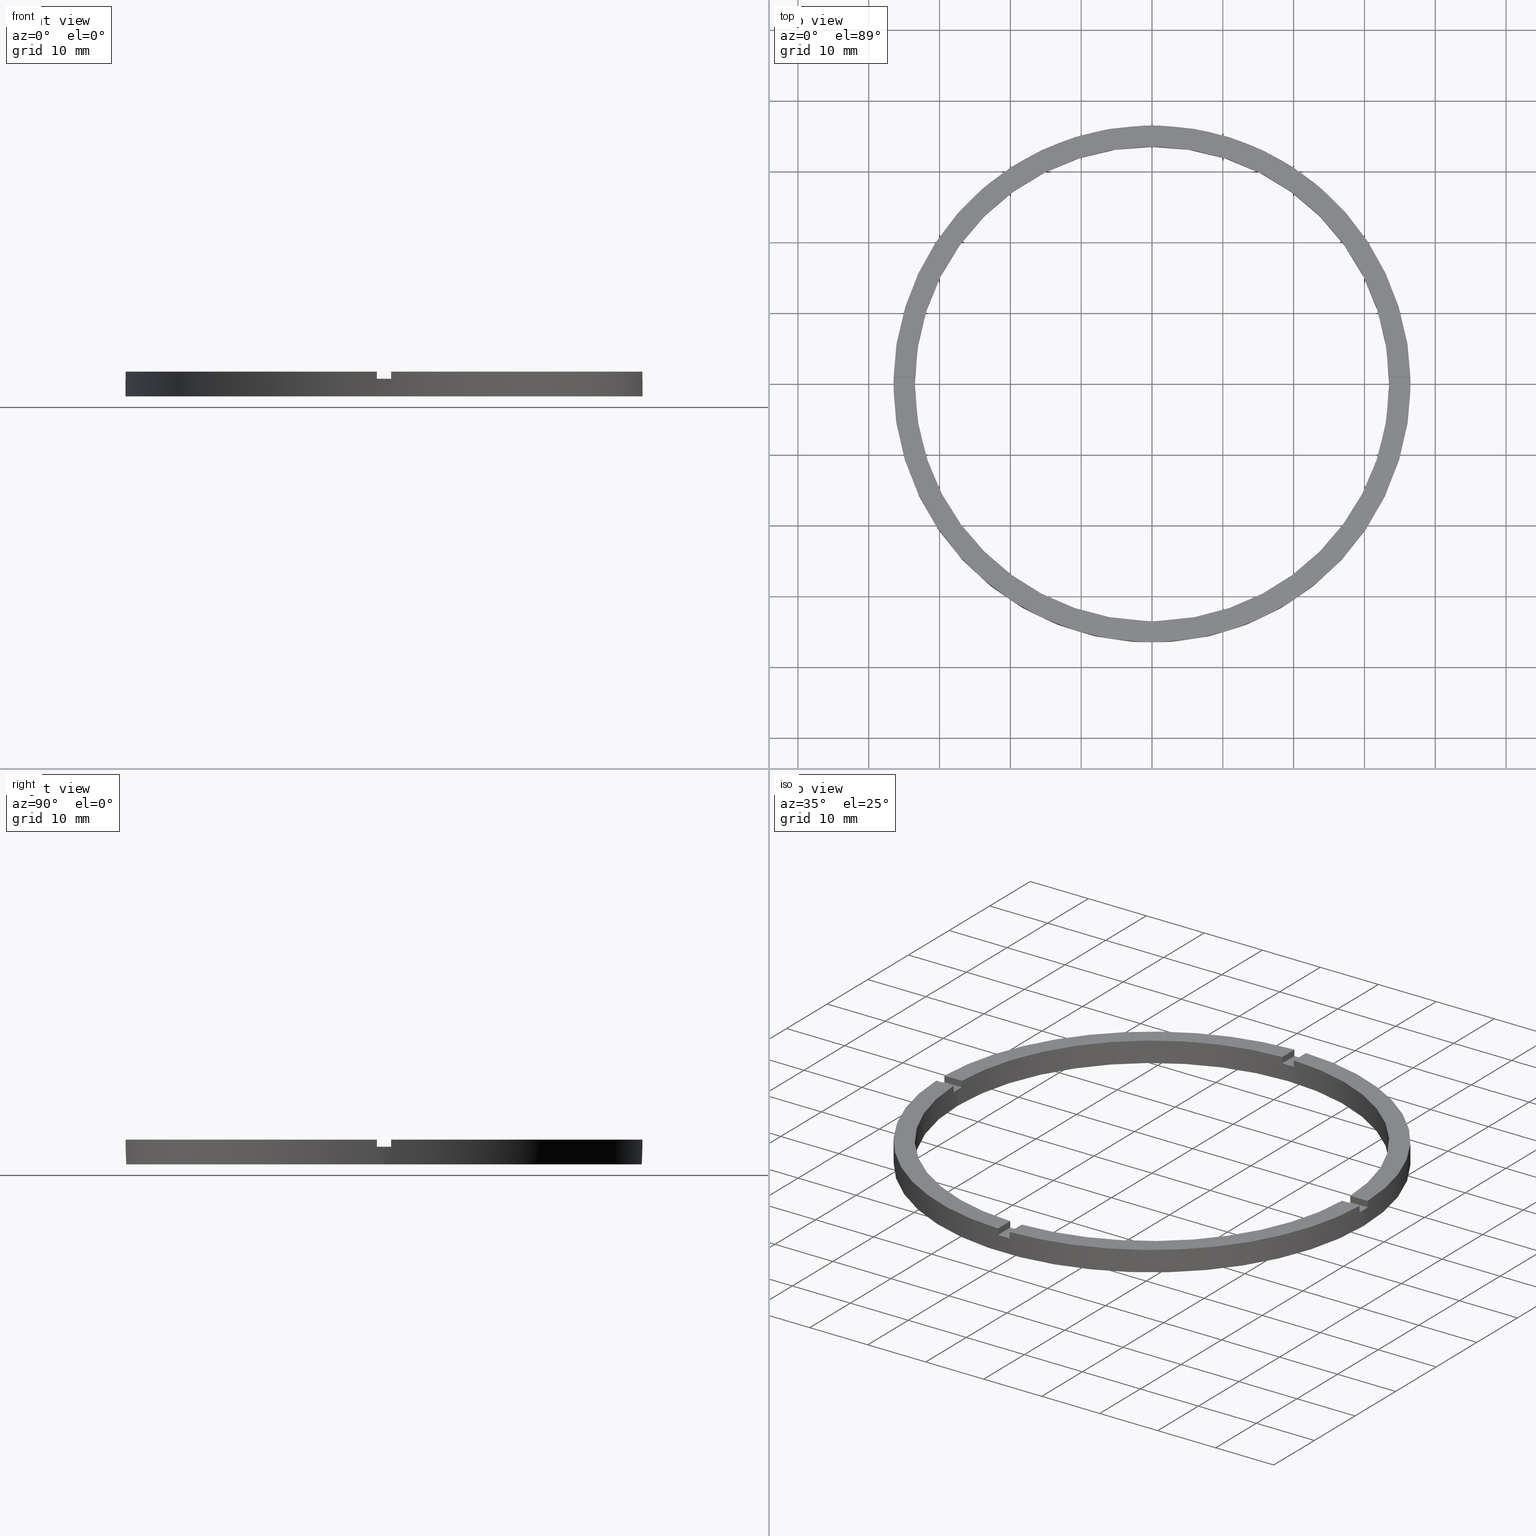
[diagram: canonical four-view strip — front | top / right | iso, engineering-drawing reading convention]
A machine part, canonical four-view strip (front | top / right | iso — engineering-drawing reading convention). The complete STEP part file that produces these views, byte-faithful:
ISO-10303-21;
HEADER;
FILE_DESCRIPTION (( 'STEP AP203' ),
    '1' );
FILE_NAME ('514150.step',
    '2024-12-26T02:42:22',
    ( 'MSI' ),
    ( '' ),
    'SwSTEP 2.0',
    'SolidWorks 2020',
    '' );
FILE_SCHEMA (( 'CONFIG_CONTROL_DESIGN' ));
ENDSEC;

DATA;
#1 = CARTESIAN_POINT ( 'NONE',  ( 0.000000000000000000, 0.000000000000000000, 2.500000000000000000 ) ) ;
#2 = CARTESIAN_POINT ( 'NONE',  ( -36.48629879831605649, 0.9999999999999726885, 3.500000000000000000 ) ) ;
#3 =( NAMED_UNIT ( * ) SI_UNIT ( $, .STERADIAN. ) SOLID_ANGLE_UNIT ( ) );
#4 = LINE ( 'NONE', #632, #555 ) ;
#5 = DIRECTION ( 'NONE',  ( 1.301042606982605074E-16, -1.000000000000000000, 0.000000000000000000 ) ) ;
#6 = CIRCLE ( 'NONE', #705, 36.50000000000000000 ) ;
#7 = LINE ( 'NONE', #352, #271 ) ;
#8 = DIRECTION ( 'NONE',  ( 1.000000000000000000, 0.000000000000000000, 0.000000000000000000 ) ) ;
#9 = PERSON_AND_ORGANIZATION_ROLE ( 'creator' ) ;
#10 = LINE ( 'NONE', #521, #272 ) ;
#11 = DIRECTION ( 'NONE',  ( 1.000000000000000000, 0.000000000000000000, 0.000000000000000000 ) ) ;
#12 = FACE_OUTER_BOUND ( 'NONE', #164, .T. ) ;
#13 = AXIS2_PLACEMENT_3D ( 'NONE', #753, #520, #267 ) ;
#14 = CARTESIAN_POINT ( 'NONE',  ( 36.50000000000000000, 4.469960816887838430E-15, 0.000000000000000000 ) ) ;
#15 = EDGE_CURVE ( 'NONE', #685, #411, #359, .T. ) ;
#16 = AXIS2_PLACEMENT_3D ( 'NONE', #36, #525, #600 ) ;
#17 = VECTOR ( 'NONE', #781, 1000.000000000000000 ) ;
#18 = FACE_OUTER_BOUND ( 'NONE', #74, .T. ) ;
#19 = DIRECTION ( 'NONE',  ( -0.000000000000000000, -0.000000000000000000, -1.000000000000000000 ) ) ;
#20 = CARTESIAN_POINT ( 'NONE',  ( 0.000000000000000000, 0.000000000000000000, 0.000000000000000000 ) ) ;
#21 = FACE_OUTER_BOUND ( 'NONE', #670, .T. ) ;
#22 = PLANE ( 'NONE',  #491 ) ;
#23 = LINE ( 'NONE', #69, #37 ) ;
#24 = PLANE ( 'NONE',  #691 ) ;
#25 = LINE ( 'NONE', #472, #546 ) ;
#26 = LINE ( 'NONE', #569, #287 ) ;
#27 = DIRECTION ( 'NONE',  ( 1.000000000000000000, 0.000000000000000000, 0.000000000000000000 ) ) ;
#28 = LINE ( 'NONE', #430, #42 ) ;
#29 = PRODUCT_RELATED_PRODUCT_CATEGORY ( 'detail', '', ( #716 ) ) ;
#30 = DIRECTION ( 'NONE',  ( 0.000000000000000000, 0.000000000000000000, 1.000000000000000000 ) ) ;
#31 = CIRCLE ( 'NONE', #397, 33.50000000000000000 ) ;
#32 = CIRCLE ( 'NONE', #573, 33.50000000000000000 ) ;
#33 = CARTESIAN_POINT ( 'NONE',  ( 0.9999999999999749090, 26.49999999999999645, 3.500000000000000000 ) ) ;
#34 = FACE_OUTER_BOUND ( 'NONE', #584, .T. ) ;
#35 = DIRECTION ( 'NONE',  ( 1.000000000000000000, 1.951563910473907735E-16, -0.000000000000000000 ) ) ;
#36 = CARTESIAN_POINT ( 'NONE',  ( 0.000000000000000000, 0.000000000000000000, 3.500000000000000000 ) ) ;
#37 = VECTOR ( 'NONE', #199, 1000.000000000000000 ) ;
#38 = FACE_OUTER_BOUND ( 'NONE', #399, .T. ) ;
#39 = CARTESIAN_POINT ( 'NONE',  ( -33.50000000000000000, 0.000000000000000000, 2.500000000000000000 ) ) ;
#40 = EDGE_CURVE ( 'NONE', #311, #677, #362, .T. ) ;
#41 = LINE ( 'NONE', #554, #284 ) ;
#42 = VECTOR ( 'NONE', #572, 1000.000000000000000 ) ;
#43 = AXIS2_PLACEMENT_3D ( 'NONE', #764, #467, #259 ) ;
#44 = EDGE_CURVE ( 'NONE', #498, #137, #640, .T. ) ;
#45 = DIRECTION ( 'NONE',  ( 1.000000000000000000, 0.000000000000000000, 0.000000000000000000 ) ) ;
#46 = VERTEX_POINT ( 'NONE', #39 ) ;
#47 = DIRECTION ( 'NONE',  ( 1.000000000000000000, 1.301042606982605074E-16, 0.000000000000000000 ) ) ;
#48 = FACE_OUTER_BOUND ( 'NONE', #466, .T. ) ;
#49 = ORIENTED_EDGE ( 'NONE', *, *, #433, .F. ) ;
#50 = LINE ( 'NONE', #33, #299 ) ;
#51 = CARTESIAN_POINT ( 'NONE',  ( 26.49999999999998934, -1.000000000000158318, 2.500000000000000000 ) ) ;
#52 = CARTESIAN_POINT ( 'NONE',  ( 0.000000000000000000, 0.000000000000000000, 3.500000000000000000 ) ) ;
#53 = ORIENTED_EDGE ( 'NONE', *, *, #450, .T. ) ;
#54 = ORIENTED_EDGE ( 'NONE', *, *, #756, .F. ) ;
#55 = DIRECTION ( 'NONE',  ( 0.000000000000000000, 1.000000000000000000, 0.000000000000000000 ) ) ;
#56 = ORIENTED_EDGE ( 'NONE', *, *, #638, .F. ) ;
#57 = ORIENTED_EDGE ( 'NONE', *, *, #435, .F. ) ;
#58 = ORIENTED_EDGE ( 'NONE', *, *, #532, .T. ) ;
#59 = CARTESIAN_POINT ( 'NONE',  ( 0.000000000000000000, 0.000000000000000000, 3.500000000000000000 ) ) ;
#60 = VERTEX_POINT ( 'NONE', #263 ) ;
#61 = CARTESIAN_POINT ( 'NONE',  ( 0.000000000000000000, 0.000000000000000000, 2.500000000000000000 ) ) ;
#62 = ORIENTED_EDGE ( 'NONE', *, *, #92, .T. ) ;
#63 = EDGE_LOOP ( 'NONE', ( #332, #502, #566, #766 ) ) ;
#64 = EDGE_LOOP ( 'NONE', ( #610, #459, #484, #211, #421, #461, #205, #189, #317, #585, #745, #65 ) ) ;
#65 = ORIENTED_EDGE ( 'NONE', *, *, #201, .F. ) ;
#66 = ORIENTED_EDGE ( 'NONE', *, *, #531, .F. ) ;
#67 = VERTEX_POINT ( 'NONE', #426 ) ;
#68 = EDGE_LOOP ( 'NONE', ( #505, #86, #228, #398 ) ) ;
#69 = CARTESIAN_POINT ( 'NONE',  ( -1.000000000000161426, -26.50000000000017764, 3.500000000000000000 ) ) ;
#70 = VERTEX_POINT ( 'NONE', #358 ) ;
#71 = VECTOR ( 'NONE', #268, 1000.000000000000000 ) ;
#72 = ORIENTED_EDGE ( 'NONE', *, *, #770, .T. ) ;
#73 = ORIENTED_EDGE ( 'NONE', *, *, #201, .T. ) ;
#74 = EDGE_LOOP ( 'NONE', ( #571, #595, #244, #286, #507, #503 ) ) ;
#75 = ORIENTED_EDGE ( 'NONE', *, *, #780, .T. ) ;
#76 = AXIS2_PLACEMENT_3D ( 'NONE', #186, #611, #234 ) ;
#77 = DIRECTION ( 'NONE',  ( -0.000000000000000000, -0.000000000000000000, -1.000000000000000000 ) ) ;
#78 = CYLINDRICAL_SURFACE ( 'NONE', #367, 36.50000000000000000 ) ;
#79 = VERTEX_POINT ( 'NONE', #436 ) ;
#80 = APPROVAL_PERSON_ORGANIZATION ( #601, #707, #664 ) ;
#81 = ORIENTED_EDGE ( 'NONE', *, *, #450, .F. ) ;
#82 = ADVANCED_FACE ( 'NONE', ( #366 ), #726, .T. ) ;
#83 = LINE ( 'NONE', #276, #71 ) ;
#84 = ORIENTED_EDGE ( 'NONE', *, *, #706, .T. ) ;
#85 = LINE ( 'NONE', #262, #328 ) ;
#86 = ORIENTED_EDGE ( 'NONE', *, *, #708, .T. ) ;
#87 = DIRECTION ( 'NONE',  ( 1.000000000000000000, 0.000000000000000000, 0.000000000000000000 ) ) ;
#88 = EDGE_LOOP ( 'NONE', ( #99, #556, #242, #241 ) ) ;
#89 = LINE ( 'NONE', #727, #606 ) ;
#90 = VERTEX_POINT ( 'NONE', #754 ) ;
#91 = AXIS2_PLACEMENT_3D ( 'NONE', #1, #103, #506 ) ;
#92 = EDGE_CURVE ( 'NONE', #46, #308, #109, .T. ) ;
#93 = LINE ( 'NONE', #231, #322 ) ;
#94 = ORIENTED_EDGE ( 'NONE', *, *, #279, .F. ) ;
#95 = CIRCLE ( 'NONE', #702, 36.50000000000000000 ) ;
#96 = VERTEX_POINT ( 'NONE', #419 ) ;
#97 = DIRECTION ( 'NONE',  ( -0.000000000000000000, -0.000000000000000000, -1.000000000000000000 ) ) ;
#98 = EDGE_CURVE ( 'NONE', #137, #380, #120, .T. ) ;
#99 = ORIENTED_EDGE ( 'NONE', *, *, #751, .F. ) ;
#100 = CIRCLE ( 'NONE', #248, 33.50000000000000000 ) ;
#101 = VERTEX_POINT ( 'NONE', #474 ) ;
#102 = LINE ( 'NONE', #327, #365 ) ;
#103 = DIRECTION ( 'NONE',  ( 0.000000000000000000, 0.000000000000000000, 1.000000000000000000 ) ) ;
#104 = CIRCLE ( 'NONE', #278, 33.50000000000000000 ) ;
#105 = DIRECTION ( 'NONE',  ( -0.000000000000000000, -0.000000000000000000, -1.000000000000000000 ) ) ;
#106 = ADVANCED_FACE ( 'NONE', ( #635 ), #24, .F. ) ;
#107 = DIRECTION ( 'NONE',  ( 0.000000000000000000, 0.000000000000000000, 1.000000000000000000 ) ) ;
#108 = VECTOR ( 'NONE', #463, 1000.000000000000000 ) ;
#109 = LINE ( 'NONE', #131, #623 ) ;
#110 = LINE ( 'NONE', #478, #631 ) ;
#111 = EDGE_CURVE ( 'NONE', #162, #311, #102, .T. ) ;
#112 = CC_DESIGN_APPROVAL ( #434, ( #171 ) ) ;
#113 = LINE ( 'NONE', #511, #108 ) ;
#114 = EDGE_LOOP ( 'NONE', ( #501, #614, #238, #165 ) ) ;
#115 = VECTOR ( 'NONE', #174, 1000.000000000000000 ) ;
#116 = CARTESIAN_POINT ( 'NONE',  ( 0.000000000000000000, 0.000000000000000000, 2.500000000000000000 ) ) ;
#117 = PERSON_AND_ORGANIZATION ( #423, #630 ) ;
#118 = VECTOR ( 'NONE', #515, 1000.000000000000000 ) ;
#119 = VECTOR ( 'NONE', #105, 1000.000000000000000 ) ;
#120 = CIRCLE ( 'NONE', #43, 36.50000000000000000 ) ;
#121 = LOCAL_TIME ( 10, 42, 22.00000000000000000, #404 ) ;
#122 = CARTESIAN_POINT ( 'NONE',  ( 0.000000000000000000, 0.000000000000000000, 0.000000000000000000 ) ) ;
#123 = SHAPE_DEFINITION_REPRESENTATION ( #195, #132 ) ;
#124 = CARTESIAN_POINT ( 'NONE',  ( -1.000000000000161426, -26.50000000000017764, 2.500000000000000000 ) ) ;
#125 = VERTEX_POINT ( 'NONE', #667 ) ;
#126 = APPROVAL_DATE_TIME ( #387, #434 ) ;
#127 = CARTESIAN_POINT ( 'NONE',  ( 0.000000000000000000, 0.000000000000000000, 3.500000000000000000 ) ) ;
#128 = APPROVAL_DATE_TIME ( #384, #707 ) ;
#129 = CARTESIAN_POINT ( 'NONE',  ( 0.000000000000000000, 0.000000000000000000, 3.500000000000000000 ) ) ;
#130 = ORIENTED_EDGE ( 'NONE', *, *, #516, .F. ) ;
#131 = CARTESIAN_POINT ( 'NONE',  ( -33.50000000000000000, 0.000000000000000000, 3.500000000000000000 ) ) ;
#132 = ADVANCED_BREP_SHAPE_REPRESENTATION ( '514150', ( #701, #190 ), #731 ) ;
#133 = CARTESIAN_POINT ( 'NONE',  ( 0.000000000000000000, 0.000000000000000000, 2.500000000000000000 ) ) ;
#134 = PERSON_AND_ORGANIZATION ( #423, #630 ) ;
#135 = AXIS2_PLACEMENT_3D ( 'NONE', #668, #722, #8 ) ;
#136 = AXIS2_PLACEMENT_3D ( 'NONE', #184, #47, #143 ) ;
#137 = VERTEX_POINT ( 'NONE', #14 ) ;
#138 = APPROVAL_PERSON_ORGANIZATION ( #648, #434, #522 ) ;
#139 = CARTESIAN_POINT ( 'NONE',  ( 0.9999999999998386846, -26.50000000000017764, 2.500000000000000000 ) ) ;
#140 = APPROVAL_PERSON_ORGANIZATION ( #134, #202, #168 ) ;
#141 = ORIENTED_EDGE ( 'NONE', *, *, #163, .T. ) ;
#142 = DIRECTION ( 'NONE',  ( 1.000000000000000000, 0.000000000000000000, -0.000000000000000000 ) ) ;
#143 = DIRECTION ( 'NONE',  ( -1.301042606982605074E-16, 1.000000000000000000, 0.000000000000000000 ) ) ;
#144 = ORIENTED_EDGE ( 'NONE', *, *, #44, .T. ) ;
#145 = DIRECTION ( 'NONE',  ( 1.000000000000000000, 6.505213034913025371E-17, 0.000000000000000000 ) ) ;
#146 = CARTESIAN_POINT ( 'NONE',  ( -1.000000000000160538, -33.48507130050644065, 2.500000000000000000 ) ) ;
#147 = ORIENTED_EDGE ( 'NONE', *, *, #200, .T. ) ;
#148 = EDGE_CURVE ( 'NONE', #96, #586, #356, .T. ) ;
#149 = ORIENTED_EDGE ( 'NONE', *, *, #736, .T. ) ;
#150 = AXIS2_PLACEMENT_3D ( 'NONE', #59, #737, #693 ) ;
#151 = AXIS2_PLACEMENT_3D ( 'NONE', #512, #222, #713 ) ;
#152 = CC_DESIGN_PERSON_AND_ORGANIZATION_ASSIGNMENT ( #117, #439, ( #716 ) ) ;
#153 = ORIENTED_EDGE ( 'NONE', *, *, #275, .F. ) ;
#154 = LOCAL_TIME ( 10, 42, 22.00000000000000000, #375 ) ;
#155 = VERTEX_POINT ( 'NONE', #519 ) ;
#156 = EDGE_CURVE ( 'NONE', #685, #60, #370, .T. ) ;
#157 = CARTESIAN_POINT ( 'NONE',  ( -36.50000000000000000, 0.000000000000000000, 0.000000000000000000 ) ) ;
#158 = ORIENTED_EDGE ( 'NONE', *, *, #254, .T. ) ;
#159 = ADVANCED_FACE ( 'NONE', ( #624, #625 ), #22, .F. ) ;
#160 = ORIENTED_EDGE ( 'NONE', *, *, #500, .F. ) ;
#161 = EDGE_LOOP ( 'NONE', ( #475, #73, #428, #316 ) ) ;
#162 = VERTEX_POINT ( 'NONE', #657 ) ;
#163 = EDGE_CURVE ( 'NONE', #470, #46, #104, .T. ) ;
#164 = EDGE_LOOP ( 'NONE', ( #340, #591, #604, #487, #602, #212 ) ) ;
#165 = ORIENTED_EDGE ( 'NONE', *, *, #148, .F. ) ;
#166 = CARTESIAN_POINT ( 'NONE',  ( -33.48507130050644776, 0.9999999999999733546, 2.500000000000000000 ) ) ;
#167 = DIRECTION ( 'NONE',  ( 0.000000000000000000, 0.000000000000000000, 1.000000000000000000 ) ) ;
#168 = APPROVAL_ROLE ( '' ) ;
#169 = CARTESIAN_POINT ( 'NONE',  ( 0.000000000000000000, 0.000000000000000000, 2.500000000000000000 ) ) ;
#170 = ADVANCED_FACE ( 'NONE', ( #628 ), #464, .F. ) ;
#171 = SECURITY_CLASSIFICATION ( '', '', #257 ) ;
#172 = CARTESIAN_POINT ( 'NONE',  ( 0.000000000000000000, 0.000000000000000000, 2.500000000000000000 ) ) ;
#173 = CARTESIAN_POINT ( 'NONE',  ( -1.000000000000160538, -33.48507130050644065, 3.500000000000000000 ) ) ;
#174 = DIRECTION ( 'NONE',  ( 0.000000000000000000, 0.000000000000000000, 1.000000000000000000 ) ) ;
#175 = DIRECTION ( 'NONE',  ( -6.505213034913025371E-17, 1.000000000000000000, 0.000000000000000000 ) ) ;
#176 = MECHANICAL_CONTEXT ( 'NONE', #347, 'mechanical' ) ;
#177 = EDGE_CURVE ( 'NONE', #351, #690, #627, .T. ) ;
#178 = AXIS2_PLACEMENT_3D ( 'NONE', #645, #167, #209 ) ;
#179 = EDGE_CURVE ( 'NONE', #60, #349, #110, .T. ) ;
#180 = DIRECTION ( 'NONE',  ( -1.000000000000000000, -6.505213034913025371E-17, 0.000000000000000000 ) ) ;
#181 = DIRECTION ( 'NONE',  ( 0.000000000000000000, 0.000000000000000000, 1.000000000000000000 ) ) ;
#182 = DIRECTION ( 'NONE',  ( 1.000000000000000000, 0.000000000000000000, 0.000000000000000000 ) ) ;
#183 = CARTESIAN_POINT ( 'NONE',  ( -1.000000000000160538, -33.48507130050644065, 3.500000000000000000 ) ) ;
#184 = CARTESIAN_POINT ( 'NONE',  ( 0.9999999999998386846, -26.50000000000017764, 2.500000000000000000 ) ) ;
#185 = DIRECTION ( 'NONE',  ( 1.000000000000000000, 0.000000000000000000, 0.000000000000000000 ) ) ;
#186 = CARTESIAN_POINT ( 'NONE',  ( 0.000000000000000000, 0.000000000000000000, 2.500000000000000000 ) ) ;
#187 = PLANE ( 'NONE',  #703 ) ;
#188 = EDGE_CURVE ( 'NONE', #396, #67, #565, .T. ) ;
#189 = ORIENTED_EDGE ( 'NONE', *, *, #654, .F. ) ;
#190 = AXIS2_PLACEMENT_3D ( 'NONE', #20, #107, #481 ) ;
#191 = CARTESIAN_POINT ( 'NONE',  ( 0.9999999999999749090, 36.48629879831605649, 3.500000000000000000 ) ) ;
#192 = DIRECTION ( 'NONE',  ( -0.000000000000000000, 0.000000000000000000, 1.000000000000000000 ) ) ;
#193 = CARTESIAN_POINT ( 'NONE',  ( 0.9999999999999749090, 36.48629879831605649, 2.500000000000000000 ) ) ;
#194 = ORIENTED_EDGE ( 'NONE', *, *, #111, .T. ) ;
#195 = PRODUCT_DEFINITION_SHAPE ( 'NONE', 'NONE',  #576 ) ;
#196 = CARTESIAN_POINT ( 'NONE',  ( 0.000000000000000000, 0.000000000000000000, 3.500000000000000000 ) ) ;
#197 = AXIS2_PLACEMENT_3D ( 'NONE', #61, #451, #87 ) ;
#198 = PRODUCT_DEFINITION_FORMATION_WITH_SPECIFIED_SOURCE ( '�κ�', '', #716, .NOT_KNOWN. ) ;
#199 = DIRECTION ( 'NONE',  ( 1.301042606982605074E-16, -1.000000000000000000, 0.000000000000000000 ) ) ;
#200 = EDGE_CURVE ( 'NONE', #650, #380, #28, .T. ) ;
#201 = EDGE_CURVE ( 'NONE', #685, #577, #41, .T. ) ;
#202 = APPROVAL ( #214, 'δָ��' ) ;
#203 = ORIENTED_EDGE ( 'NONE', *, *, #532, .F. ) ;
#204 = ORIENTED_EDGE ( 'NONE', *, *, #230, .T. ) ;
#205 = ORIENTED_EDGE ( 'NONE', *, *, #730, .T. ) ;
#206 = CARTESIAN_POINT ( 'NONE',  ( 0.000000000000000000, 0.000000000000000000, 2.500000000000000000 ) ) ;
#207 = ORIENTED_EDGE ( 'NONE', *, *, #40, .F. ) ;
#208 = ADVANCED_FACE ( 'NONE', ( #534 ), #537, .F. ) ;
#209 = DIRECTION ( 'NONE',  ( 1.000000000000000000, 0.000000000000000000, -0.000000000000000000 ) ) ;
#210 = PERSON_AND_ORGANIZATION_ROLE ( 'creator' ) ;
#211 = ORIENTED_EDGE ( 'NONE', *, *, #92, .F. ) ;
#212 = ORIENTED_EDGE ( 'NONE', *, *, #15, .T. ) ;
#213 = DIRECTION ( 'NONE',  ( 1.000000000000000000, 1.951563910473907735E-16, -0.000000000000000000 ) ) ;
#214 = APPROVAL_STATUS ( 'not_yet_approved' ) ;
#215 = CARTESIAN_POINT ( 'NONE',  ( 0.9999999999998400169, -36.48629879831606360, 3.500000000000000000 ) ) ;
#216 = EDGE_CURVE ( 'NONE', #162, #563, #540, .T. ) ;
#217 = CARTESIAN_POINT ( 'NONE',  ( 0.000000000000000000, 0.000000000000000000, 3.500000000000000000 ) ) ;
#218 = CARTESIAN_POINT ( 'NONE',  ( 33.48507130050644776, 0.9999999999998421263, 3.500000000000000000 ) ) ;
#219 = DIRECTION ( 'NONE',  ( 0.000000000000000000, 0.000000000000000000, 1.000000000000000000 ) ) ;
#220 = DIRECTION ( 'NONE',  ( -0.000000000000000000, -0.000000000000000000, -1.000000000000000000 ) ) ;
#221 = DIRECTION ( 'NONE',  ( 1.000000000000000000, 0.000000000000000000, 0.000000000000000000 ) ) ;
#222 = DIRECTION ( 'NONE',  ( -1.951563910473907735E-16, 1.000000000000000000, 0.000000000000000000 ) ) ;
#223 = AXIS2_PLACEMENT_3D ( 'NONE', #523, #192, #594 ) ;
#224 = ORIENTED_EDGE ( 'NONE', *, *, #575, .F. ) ;
#225 = CARTESIAN_POINT ( 'NONE',  ( 0.9999999999999749090, 36.48629879831605649, 3.500000000000000000 ) ) ;
#226 = DIRECTION ( 'NONE',  ( 1.000000000000000000, 0.000000000000000000, -0.000000000000000000 ) ) ;
#227 = DIRECTION ( 'NONE',  ( -0.000000000000000000, -0.000000000000000000, -1.000000000000000000 ) ) ;
#228 = ORIENTED_EDGE ( 'NONE', *, *, #570, .F. ) ;
#229 = DIRECTION ( 'NONE',  ( 0.000000000000000000, 0.000000000000000000, 1.000000000000000000 ) ) ;
#230 = EDGE_CURVE ( 'NONE', #245, #79, #283, .T. ) ;
#231 = CARTESIAN_POINT ( 'NONE',  ( -1.000000000000161426, -26.50000000000017764, 2.500000000000000000 ) ) ;
#232 = CARTESIAN_POINT ( 'NONE',  ( 0.000000000000000000, 0.000000000000000000, 3.500000000000000000 ) ) ;
#233 = CARTESIAN_POINT ( 'NONE',  ( 33.50000000000000000, 4.102566777143633774E-15, 0.000000000000000000 ) ) ;
#234 = DIRECTION ( 'NONE',  ( 1.000000000000000000, 0.000000000000000000, 0.000000000000000000 ) ) ;
#235 = CARTESIAN_POINT ( 'NONE',  ( 0.9999999999999749090, 26.49999999999999645, 2.500000000000000000 ) ) ;
#236 = CARTESIAN_POINT ( 'NONE',  ( 0.9999999999998386846, -26.50000000000017764, 3.500000000000000000 ) ) ;
#237 = DIRECTION ( 'NONE',  ( 1.000000000000000000, 0.000000000000000000, 0.000000000000000000 ) ) ;
#238 = ORIENTED_EDGE ( 'NONE', *, *, #570, .T. ) ;
#239 = DIRECTION ( 'NONE',  ( 0.000000000000000000, 0.000000000000000000, 1.000000000000000000 ) ) ;
#240 = CARTESIAN_POINT ( 'NONE',  ( 0.000000000000000000, 0.000000000000000000, 3.500000000000000000 ) ) ;
#241 = ORIENTED_EDGE ( 'NONE', *, *, #560, .F. ) ;
#242 = ORIENTED_EDGE ( 'NONE', *, *, #315, .T. ) ;
#243 = PLANE ( 'NONE',  #307 ) ;
#244 = ORIENTED_EDGE ( 'NONE', *, *, #455, .T. ) ;
#245 = VERTEX_POINT ( 'NONE', #250 ) ;
#246 = EDGE_CURVE ( 'NONE', #650, #155, #562, .T. ) ;
#247 = ADVANCED_FACE ( 'NONE', ( #12 ), #782, .T. ) ;
#248 = AXIS2_PLACEMENT_3D ( 'NONE', #552, #181, #221 ) ;
#249 = AXIS2_PLACEMENT_3D ( 'NONE', #264, #449, #440 ) ;
#250 = CARTESIAN_POINT ( 'NONE',  ( -1.000000000000025091, 36.48629879831605649, 3.500000000000000000 ) ) ;
#251 = AXIS2_PLACEMENT_3D ( 'NONE', #129, #258, #424 ) ;
#252 = EDGE_CURVE ( 'NONE', #162, #314, #31, .T. ) ;
#253 = CC_DESIGN_APPROVAL ( #707, ( #576 ) ) ;
#254 = EDGE_CURVE ( 'NONE', #245, #70, #294, .T. ) ;
#255 = CARTESIAN_POINT ( 'NONE',  ( 36.48629879831604939, -1.000000000000157652, 3.500000000000000000 ) ) ;
#256 = DATE_TIME_ROLE ( 'classification_date' ) ;
#257 = SECURITY_CLASSIFICATION_LEVEL ( 'unclassified' ) ;
#258 = DIRECTION ( 'NONE',  ( -0.000000000000000000, -0.000000000000000000, -1.000000000000000000 ) ) ;
#259 = DIRECTION ( 'NONE',  ( 1.000000000000000000, 0.000000000000000000, 0.000000000000000000 ) ) ;
#260 = CARTESIAN_POINT ( 'NONE',  ( 0.9999999999999749090, 33.48507130050644776, 3.500000000000000000 ) ) ;
#261 = APPLICATION_PROTOCOL_DEFINITION ( 'international standard', 'config_control_design', 1994, #760 ) ;
#262 = CARTESIAN_POINT ( 'NONE',  ( 26.49999999999998934, -1.000000000000158318, 3.500000000000000000 ) ) ;
#263 = CARTESIAN_POINT ( 'NONE',  ( 33.50000000000000000, 4.102566777143633774E-15, 2.500000000000000000 ) ) ;
#264 = CARTESIAN_POINT ( 'NONE',  ( -26.50000000000018474, -1.000000000000025313, 2.500000000000000000 ) ) ;
#265 = AXIS2_PLACEMENT_3D ( 'NONE', #735, #492, #142 ) ;
#266 = AXIS2_PLACEMENT_3D ( 'NONE', #361, #599, #697 ) ;
#267 = DIRECTION ( 'NONE',  ( 1.000000000000000000, 0.000000000000000000, 0.000000000000000000 ) ) ;
#268 = DIRECTION ( 'NONE',  ( -1.000000000000000000, -6.505213034913025371E-17, -0.000000000000000000 ) ) ;
#269 = CIRCLE ( 'NONE', #479, 36.50000000000000000 ) ;
#270 = DIRECTION ( 'NONE',  ( -0.000000000000000000, -0.000000000000000000, -1.000000000000000000 ) ) ;
#271 = VECTOR ( 'NONE', #437, 1000.000000000000000 ) ;
#272 = VECTOR ( 'NONE', #220, 1000.000000000000000 ) ;
#273 = DIRECTION ( 'NONE',  ( 0.000000000000000000, 0.000000000000000000, 1.000000000000000000 ) ) ;
#274 = VECTOR ( 'NONE', #213, 1000.000000000000000 ) ;
#275 = EDGE_CURVE ( 'NONE', #470, #321, #4, .T. ) ;
#276 = CARTESIAN_POINT ( 'NONE',  ( 26.49999999999998934, 0.9999999999998416822, 3.500000000000000000 ) ) ;
#277 = VECTOR ( 'NONE', #748, 1000.000000000000000 ) ;
#278 = AXIS2_PLACEMENT_3D ( 'NONE', #169, #418, #469 ) ;
#279 = EDGE_CURVE ( 'NONE', #721, #342, #553, .T. ) ;
#280 = DIRECTION ( 'NONE',  ( 0.000000000000000000, 0.000000000000000000, 1.000000000000000000 ) ) ;
#281 = FACE_OUTER_BOUND ( 'NONE', #581, .T. ) ;
#282 = CC_DESIGN_PERSON_AND_ORGANIZATION_ASSIGNMENT ( #395, #9, ( #576 ) ) ;
#283 = LINE ( 'NONE', #590, #288 ) ;
#284 = VECTOR ( 'NONE', #30, 1000.000000000000000 ) ;
#285 = CIRCLE ( 'NONE', #91, 36.50000000000000000 ) ;
#286 = ORIENTED_EDGE ( 'NONE', *, *, #330, .F. ) ;
#287 = VECTOR ( 'NONE', #711, 1000.000000000000000 ) ;
#288 = VECTOR ( 'NONE', #510, 1000.000000000000000 ) ;
#289 = DIRECTION ( 'NONE',  ( 1.000000000000000000, 0.000000000000000000, -0.000000000000000000 ) ) ;
#290 = CYLINDRICAL_SURFACE ( 'NONE', #504, 36.50000000000000000 ) ;
#291 = VECTOR ( 'NONE', #605, 1000.000000000000000 ) ;
#292 = CIRCLE ( 'NONE', #223, 36.50000000000000000 ) ;
#293 = LINE ( 'NONE', #704, #17 ) ;
#294 = LINE ( 'NONE', #368, #536 ) ;
#295 = VERTEX_POINT ( 'NONE', #402 ) ;
#296 = VERTEX_POINT ( 'NONE', #742 ) ;
#297 = LINE ( 'NONE', #139, #291 ) ;
#298 = ADVANCED_FACE ( 'NONE', ( #547 ), #290, .T. ) ;
#299 = VECTOR ( 'NONE', #55, 1000.000000000000000 ) ;
#300 = ORIENTED_EDGE ( 'NONE', *, *, #252, .T. ) ;
#301 = ORIENTED_EDGE ( 'NONE', *, *, #759, .T. ) ;
#302 = ORIENTED_EDGE ( 'NONE', *, *, #531, .T. ) ;
#303 = DIRECTION ( 'NONE',  ( 0.000000000000000000, -0.000000000000000000, 1.000000000000000000 ) ) ;
#304 = VERTEX_POINT ( 'NONE', #386 ) ;
#305 = ORIENTED_EDGE ( 'NONE', *, *, #148, .T. ) ;
#306 = VERTEX_POINT ( 'NONE', #448 ) ;
#307 = AXIS2_PLACEMENT_3D ( 'NONE', #393, #618, #289 ) ;
#308 = VERTEX_POINT ( 'NONE', #777 ) ;
#309 = DIRECTION ( 'NONE',  ( 1.000000000000000000, -0.000000000000000000, 0.000000000000000000 ) ) ;
#310 = CC_DESIGN_SECURITY_CLASSIFICATION ( #171, ( #198 ) ) ;
#311 = VERTEX_POINT ( 'NONE', #193 ) ;
#312 = DIRECTION ( 'NONE',  ( 0.000000000000000000, 0.000000000000000000, 1.000000000000000000 ) ) ;
#313 = ORIENTED_EDGE ( 'NONE', *, *, #246, .F. ) ;
#314 = VERTEX_POINT ( 'NONE', #495 ) ;
#315 = EDGE_CURVE ( 'NONE', #692, #304, #23, .T. ) ;
#316 = ORIENTED_EDGE ( 'NONE', *, *, #493, .F. ) ;
#317 = ORIENTED_EDGE ( 'NONE', *, *, #188, .T. ) ;
#318 = ADVANCED_FACE ( 'NONE', ( #535 ), #695, .T. ) ;
#319 = ORIENTED_EDGE ( 'NONE', *, *, #715, .T. ) ;
#320 = PLANE ( 'NONE',  #749 ) ;
#321 = VERTEX_POINT ( 'NONE', #488 ) ;
#322 = VECTOR ( 'NONE', #363, 1000.000000000000000 ) ;
#323 = ORIENTED_EDGE ( 'NONE', *, *, #708, .F. ) ;
#324 = DIRECTION ( 'NONE',  ( -0.000000000000000000, -0.000000000000000000, -1.000000000000000000 ) ) ;
#325 = LINE ( 'NONE', #771, #612 ) ;
#326 = ORIENTED_EDGE ( 'NONE', *, *, #756, .T. ) ;
#327 = CARTESIAN_POINT ( 'NONE',  ( 0.9999999999999749090, 26.49999999999999645, 2.500000000000000000 ) ) ;
#328 = VECTOR ( 'NONE', #355, 1000.000000000000000 ) ;
#329 = ORIENTED_EDGE ( 'NONE', *, *, #560, .T. ) ;
#330 = EDGE_CURVE ( 'NONE', #46, #621, #543, .T. ) ;
#331 = FACE_OUTER_BOUND ( 'NONE', #346, .T. ) ;
#332 = ORIENTED_EDGE ( 'NONE', *, *, #435, .T. ) ;
#333 = DIRECTION ( 'NONE',  ( 0.000000000000000000, 0.000000000000000000, 1.000000000000000000 ) ) ;
#334 = AXIS2_PLACEMENT_3D ( 'NONE', #232, #471, #724 ) ;
#335 = VECTOR ( 'NONE', #480, 1000.000000000000000 ) ;
#336 = ORIENTED_EDGE ( 'NONE', *, *, #719, .F. ) ;
#337 = APPROVAL_STATUS ( 'not_yet_approved' ) ;
#338 = CC_DESIGN_DATE_AND_TIME_ASSIGNMENT ( #656, #477, ( #576 ) ) ;
#339 = CYLINDRICAL_SURFACE ( 'NONE', #729, 33.50000000000000000 ) ;
#340 = ORIENTED_EDGE ( 'NONE', *, *, #457, .T. ) ;
#341 = CIRCLE ( 'NONE', #16, 33.50000000000000000 ) ;
#342 = VERTEX_POINT ( 'NONE', #698 ) ;
#343 = ORIENTED_EDGE ( 'NONE', *, *, #706, .F. ) ;
#344 = CARTESIAN_POINT ( 'NONE',  ( -36.50000000000000000, 0.000000000000000000, 2.500000000000000000 ) ) ;
#345 = CIRCLE ( 'NONE', #13, 36.50000000000000000 ) ;
#346 = EDGE_LOOP ( 'NONE', ( #53, #597, #49, #741 ) ) ;
#347 = APPLICATION_CONTEXT ( 'configuration controlled 3d designs of mechanical parts and assemblies' ) ;
#348 = LINE ( 'NONE', #728, #626 ) ;
#349 = VERTEX_POINT ( 'NONE', #233 ) ;
#350 = CIRCLE ( 'NONE', #266, 33.50000000000000000 ) ;
#351 = VERTEX_POINT ( 'NONE', #773 ) ;
#352 = CARTESIAN_POINT ( 'NONE',  ( -1.000000000000025091, 26.49999999999999645, 2.500000000000000000 ) ) ;
#353 = CIRCLE ( 'NONE', #425, 36.50000000000000000 ) ;
#354 = EDGE_LOOP ( 'NONE', ( #224, #665 ) ) ;
#355 = DIRECTION ( 'NONE',  ( 1.000000000000000000, 6.505213034913025371E-17, 0.000000000000000000 ) ) ;
#356 = LINE ( 'NONE', #458, #118 ) ;
#357 = VECTOR ( 'NONE', #227, 1000.000000000000000 ) ;
#358 = CARTESIAN_POINT ( 'NONE',  ( -1.000000000000025091, 36.48629879831605649, 2.500000000000000000 ) ) ;
#359 = LINE ( 'NONE', #51, #634 ) ;
#360 = VECTOR ( 'NONE', #324, 1000.000000000000000 ) ;
#361 = CARTESIAN_POINT ( 'NONE',  ( 0.000000000000000000, 0.000000000000000000, 0.000000000000000000 ) ) ;
#362 = LINE ( 'NONE', #191, #115 ) ;
#363 = DIRECTION ( 'NONE',  ( 1.301042606982605074E-16, -1.000000000000000000, 0.000000000000000000 ) ) ;
#364 = CIRCLE ( 'NONE', #135, 36.50000000000000000 ) ;
#365 = VECTOR ( 'NONE', #564, 1000.000000000000000 ) ;
#366 = FACE_OUTER_BOUND ( 'NONE', #684, .T. ) ;
#367 = AXIS2_PLACEMENT_3D ( 'NONE', #127, #19, #513 ) ;
#368 = CARTESIAN_POINT ( 'NONE',  ( -1.000000000000025091, 36.48629879831605649, 3.500000000000000000 ) ) ;
#369 = LINE ( 'NONE', #432, #119 ) ;
#370 = CIRCLE ( 'NONE', #758, 33.50000000000000000 ) ;
#371 = EDGE_CURVE ( 'NONE', #90, #304, #549, .T. ) ;
#372 = DIRECTION ( 'NONE',  ( 1.000000000000000000, 0.000000000000000000, 0.000000000000000000 ) ) ;
#373 = CIRCLE ( 'NONE', #526, 33.50000000000000000 ) ;
#374 = VERTEX_POINT ( 'NONE', #443 ) ;
#375 = COORDINATED_UNIVERSAL_TIME_OFFSET ( 8, 0, .AHEAD. ) ;
#376 = DIRECTION ( 'NONE',  ( -1.000000000000000000, -6.505213034913025371E-17, -0.000000000000000000 ) ) ;
#377 = APPROVAL_DATE_TIME ( #678, #202 ) ;
#378 = AXIS2_PLACEMENT_3D ( 'NONE', #116, #717, #509 ) ;
#379 = CALENDAR_DATE ( 2024, 26, 12 ) ;
#380 = VERTEX_POINT ( 'NONE', #157 ) ;
#381 = DIRECTION ( 'NONE',  ( 0.000000000000000000, 0.000000000000000000, 1.000000000000000000 ) ) ;
#382 = EDGE_LOOP ( 'NONE', ( #130, #144, #496, #388, #676, #305, #323, #158, #336, #427, #56, #58 ) ) ;
#383 = CC_DESIGN_APPROVAL ( #202, ( #198 ) ) ;
#384 = DATE_AND_TIME ( #679, #643 ) ;
#385 = ADVANCED_FACE ( 'NONE', ( #48 ), #527, .T. ) ;
#386 = CARTESIAN_POINT ( 'NONE',  ( -1.000000000000160094, -36.48629879831604939, 3.500000000000000000 ) ) ;
#387 = DATE_AND_TIME ( #661, #154 ) ;
#388 = ORIENTED_EDGE ( 'NONE', *, *, #200, .F. ) ;
#389 = CALENDAR_DATE ( 2024, 26, 12 ) ;
#390 = DIRECTION ( 'NONE',  ( -1.000000000000000000, 0.000000000000000000, 0.000000000000000000 ) ) ;
#391 = ORIENTED_EDGE ( 'NONE', *, *, #111, .F. ) ;
#392 = COORDINATED_UNIVERSAL_TIME_OFFSET ( 8, 0, .AHEAD. ) ;
#393 = CARTESIAN_POINT ( 'NONE',  ( 0.000000000000000000, 0.000000000000000000, 3.500000000000000000 ) ) ;
#394 = EDGE_CURVE ( 'NONE', #79, #321, #32, .T. ) ;
#395 = PERSON_AND_ORGANIZATION ( #423, #630 ) ;
#396 = VERTEX_POINT ( 'NONE', #146 ) ;
#397 = AXIS2_PLACEMENT_3D ( 'NONE', #206, #303, #237 ) ;
#398 = ORIENTED_EDGE ( 'NONE', *, *, #394, .F. ) ;
#399 = EDGE_LOOP ( 'NONE', ( #613, #302, #473, #194 ) ) ;
#400 = LOCAL_TIME ( 10, 42, 22.00000000000000000, #651 ) ;
#401 = ORIENTED_EDGE ( 'NONE', *, *, #457, .F. ) ;
#402 = CARTESIAN_POINT ( 'NONE',  ( 0.9999999999998395728, -33.48507130050644776, 3.500000000000000000 ) ) ;
#403 = ADVANCED_FACE ( 'NONE', ( #34 ), #447, .F. ) ;
#404 = COORDINATED_UNIVERSAL_TIME_OFFSET ( 8, 0, .AHEAD. ) ;
#405 = ORIENTED_EDGE ( 'NONE', *, *, #500, .T. ) ;
#406 = CALENDAR_DATE ( 2024, 26, 12 ) ;
#407 = ORIENTED_EDGE ( 'NONE', *, *, #455, .F. ) ;
#408 = CARTESIAN_POINT ( 'NONE',  ( 0.000000000000000000, 0.000000000000000000, 2.500000000000000000 ) ) ;
#409 = ORIENTED_EDGE ( 'NONE', *, *, #179, .F. ) ;
#410 = ORIENTED_EDGE ( 'NONE', *, *, #682, .F. ) ;
#411 = VERTEX_POINT ( 'NONE', #483 ) ;
#412 = COORDINATED_UNIVERSAL_TIME_OFFSET ( 8, 0, .AHEAD. ) ;
#413 = ORIENTED_EDGE ( 'NONE', *, *, #759, .F. ) ;
#414 = PLANE ( 'NONE',  #265 ) ;
#415 = DIRECTION ( 'NONE',  ( 1.000000000000000000, 0.000000000000000000, 0.000000000000000000 ) ) ;
#416 = APPROVAL_STATUS ( 'not_yet_approved' ) ;
#417 = EDGE_LOOP ( 'NONE', ( #619, #160, #54, #752 ) ) ;
#418 = DIRECTION ( 'NONE',  ( 0.000000000000000000, 0.000000000000000000, 1.000000000000000000 ) ) ;
#419 = CARTESIAN_POINT ( 'NONE',  ( -36.48629879831605649, 0.9999999999999726885, 2.500000000000000000 ) ) ;
#420 = ORIENTED_EDGE ( 'NONE', *, *, #730, .F. ) ;
#421 = ORIENTED_EDGE ( 'NONE', *, *, #330, .T. ) ;
#422 = DIRECTION ( 'NONE',  ( 6.505213034913025371E-17, -1.000000000000000000, 0.000000000000000000 ) ) ;
#423 = PERSON ( 'δָ��', 'δָ��', 'δָ��', ('δָ��'), ('δָ��'), ('δָ��') ) ;
#424 = DIRECTION ( 'NONE',  ( -1.000000000000000000, 0.000000000000000000, 0.000000000000000000 ) ) ;
#425 = AXIS2_PLACEMENT_3D ( 'NONE', #441, #485, #45 ) ;
#426 = CARTESIAN_POINT ( 'NONE',  ( 0.9999999999998395728, -33.48507130050644776, 2.500000000000000000 ) ) ;
#427 = ORIENTED_EDGE ( 'NONE', *, *, #40, .T. ) ;
#428 = ORIENTED_EDGE ( 'NONE', *, *, #682, .T. ) ;
#429 = CARTESIAN_POINT ( 'NONE',  ( 33.48507130050644065, -1.000000000000157874, 2.500000000000000000 ) ) ;
#430 = CARTESIAN_POINT ( 'NONE',  ( -36.50000000000000000, 0.000000000000000000, 3.500000000000000000 ) ) ;
#431 = AXIS2_PLACEMENT_3D ( 'NONE', #196, #280, #772 ) ;
#432 = CARTESIAN_POINT ( 'NONE',  ( -33.48507130050644065, -1.000000000000026645, 3.500000000000000000 ) ) ;
#433 = EDGE_CURVE ( 'NONE', #690, #67, #297, .T. ) ;
#434 = APPROVAL ( #416, 'δָ��' ) ;
#435 = EDGE_CURVE ( 'NONE', #374, #690, #292, .T. ) ;
#436 = CARTESIAN_POINT ( 'NONE',  ( -1.000000000000025091, 33.48507130050644065, 3.500000000000000000 ) ) ;
#437 = DIRECTION ( 'NONE',  ( -0.000000000000000000, -1.000000000000000000, -0.000000000000000000 ) ) ;
#438 = DIRECTION ( 'NONE',  ( -1.000000000000000000, 0.000000000000000000, 0.000000000000000000 ) ) ;
#439 = PERSON_AND_ORGANIZATION_ROLE ( 'design_owner' ) ;
#440 = DIRECTION ( 'NONE',  ( 1.000000000000000000, 1.951563910473907735E-16, 0.000000000000000000 ) ) ;
#441 = CARTESIAN_POINT ( 'NONE',  ( 0.000000000000000000, 0.000000000000000000, 3.500000000000000000 ) ) ;
#442 = DIRECTION ( 'NONE',  ( -0.000000000000000000, -0.000000000000000000, -1.000000000000000000 ) ) ;
#443 = CARTESIAN_POINT ( 'NONE',  ( -1.000000000000160094, -36.48629879831604939, 2.500000000000000000 ) ) ;
#444 = DIRECTION ( 'NONE',  ( -0.000000000000000000, -0.000000000000000000, -1.000000000000000000 ) ) ;
#445 = DIRECTION ( 'NONE',  ( 0.000000000000000000, 0.000000000000000000, 1.000000000000000000 ) ) ;
#446 = CARTESIAN_POINT ( 'NONE',  ( 36.48629879831606360, 0.9999999999998423483, 2.500000000000000000 ) ) ;
#447 = PLANE ( 'NONE',  #249 ) ;
#448 = CARTESIAN_POINT ( 'NONE',  ( 33.48507130050644776, 0.9999999999998421263, 3.500000000000000000 ) ) ;
#449 = DIRECTION ( 'NONE',  ( 1.951563910473907735E-16, -1.000000000000000000, 0.000000000000000000 ) ) ;
#450 = EDGE_CURVE ( 'NONE', #351, #295, #557, .T. ) ;
#451 = DIRECTION ( 'NONE',  ( -0.000000000000000000, 0.000000000000000000, 1.000000000000000000 ) ) ;
#452 = AXIS2_PLACEMENT_3D ( 'NONE', #686, #733, #528 ) ;
#453 = EDGE_LOOP ( 'NONE', ( #747, #401, #593, #574, #674, #57, #329, #649, #72, #313, #147, #669 ) ) ;
#454 = ORIENTED_EDGE ( 'NONE', *, *, #216, .T. ) ;
#455 = EDGE_CURVE ( 'NONE', #155, #621, #541, .T. ) ;
#456 = AXIS2_PLACEMENT_3D ( 'NONE', #647, #768, #11 ) ;
#457 = EDGE_CURVE ( 'NONE', #411, #498, #285, .T. ) ;
#458 = CARTESIAN_POINT ( 'NONE',  ( -36.48629879831605649, 0.9999999999999726885, 3.500000000000000000 ) ) ;
#459 = ORIENTED_EDGE ( 'NONE', *, *, #179, .T. ) ;
#460 = CARTESIAN_POINT ( 'NONE',  ( -26.50000000000018474, -1.000000000000025313, 2.500000000000000000 ) ) ;
#461 = ORIENTED_EDGE ( 'NONE', *, *, #688, .F. ) ;
#462 = CARTESIAN_POINT ( 'NONE',  ( 0.000000000000000000, 0.000000000000000000, 3.500000000000000000 ) ) ;
#463 = DIRECTION ( 'NONE',  ( -1.000000000000000000, -1.951563910473907735E-16, 0.000000000000000000 ) ) ;
#464 = PLANE ( 'NONE',  #151 ) ;
#465 = ADVANCED_FACE ( 'NONE', ( #38 ), #652, .T. ) ;
#466 = EDGE_LOOP ( 'NONE', ( #410, #598, #81, #319 ) ) ;
#467 = DIRECTION ( 'NONE',  ( 0.000000000000000000, 0.000000000000000000, 1.000000000000000000 ) ) ;
#468 = PLANE ( 'NONE',  #499 ) ;
#469 = DIRECTION ( 'NONE',  ( 1.000000000000000000, 0.000000000000000000, 0.000000000000000000 ) ) ;
#470 = VERTEX_POINT ( 'NONE', #166 ) ;
#471 = DIRECTION ( 'NONE',  ( 0.000000000000000000, 0.000000000000000000, 1.000000000000000000 ) ) ;
#472 = CARTESIAN_POINT ( 'NONE',  ( -1.000000000000160094, -36.48629879831604939, 3.500000000000000000 ) ) ;
#473 = ORIENTED_EDGE ( 'NONE', *, *, #252, .F. ) ;
#474 = CARTESIAN_POINT ( 'NONE',  ( 36.48629879831604939, -1.000000000000157652, 3.500000000000000000 ) ) ;
#475 = ORIENTED_EDGE ( 'NONE', *, *, #15, .F. ) ;
#476 = CARTESIAN_POINT ( 'NONE',  ( 0.9999999999998400169, -36.48629879831606360, 2.500000000000000000 ) ) ;
#477 = DATE_TIME_ROLE ( 'creation_date' ) ;
#478 = CARTESIAN_POINT ( 'NONE',  ( 33.50000000000000000, 4.102566777143633774E-15, 3.500000000000000000 ) ) ;
#479 = AXIS2_PLACEMENT_3D ( 'NONE', #696, #229, #182 ) ;
#480 = DIRECTION ( 'NONE',  ( 0.000000000000000000, 0.000000000000000000, 1.000000000000000000 ) ) ;
#481 = DIRECTION ( 'NONE',  ( 1.000000000000000000, 0.000000000000000000, 0.000000000000000000 ) ) ;
#482 = CARTESIAN_POINT ( 'NONE',  ( 0.9999999999999749090, 33.48507130050644776, 3.500000000000000000 ) ) ;
#483 = CARTESIAN_POINT ( 'NONE',  ( 36.48629879831604939, -1.000000000000157652, 2.500000000000000000 ) ) ;
#484 = ORIENTED_EDGE ( 'NONE', *, *, #736, .F. ) ;
#485 = DIRECTION ( 'NONE',  ( 0.000000000000000000, 0.000000000000000000, 1.000000000000000000 ) ) ;
#486 = PLANE ( 'NONE',  #136 ) ;
#487 = ORIENTED_EDGE ( 'NONE', *, *, #740, .F. ) ;
#488 = CARTESIAN_POINT ( 'NONE',  ( -33.48507130050644776, 0.9999999999999733546, 3.500000000000000000 ) ) ;
#489 = EDGE_CURVE ( 'NONE', #295, #67, #293, .T. ) ;
#490 = CARTESIAN_POINT ( 'NONE',  ( 26.49999999999998934, 0.9999999999998416822, 2.500000000000000000 ) ) ;
#491 = AXIS2_PLACEMENT_3D ( 'NONE', #122, #219, #226 ) ;
#492 = DIRECTION ( 'NONE',  ( 0.000000000000000000, 0.000000000000000000, 1.000000000000000000 ) ) ;
#493 = EDGE_CURVE ( 'NONE', #411, #101, #559, .T. ) ;
#494 = CARTESIAN_POINT ( 'NONE',  ( 0.000000000000000000, 0.000000000000000000, 2.500000000000000000 ) ) ;
#495 = CARTESIAN_POINT ( 'NONE',  ( -1.000000000000025091, 33.48507130050644065, 2.500000000000000000 ) ) ;
#496 = ORIENTED_EDGE ( 'NONE', *, *, #98, .T. ) ;
#497 = ADVANCED_FACE ( 'NONE', ( #567 ), #243, .T. ) ;
#498 = VERTEX_POINT ( 'NONE', #699 ) ;
#499 = AXIS2_PLACEMENT_3D ( 'NONE', #561, #175, #180 ) ;
#500 = EDGE_CURVE ( 'NONE', #306, #563, #544, .T. ) ;
#501 = ORIENTED_EDGE ( 'NONE', *, *, #779, .F. ) ;
#502 = ORIENTED_EDGE ( 'NONE', *, *, #433, .T. ) ;
#503 = ORIENTED_EDGE ( 'NONE', *, *, #779, .T. ) ;
#504 = AXIS2_PLACEMENT_3D ( 'NONE', #240, #77, #390 ) ;
#505 = ORIENTED_EDGE ( 'NONE', *, *, #230, .F. ) ;
#506 = DIRECTION ( 'NONE',  ( 1.000000000000000000, 0.000000000000000000, 0.000000000000000000 ) ) ;
#507 = ORIENTED_EDGE ( 'NONE', *, *, #163, .F. ) ;
#508 = EDGE_CURVE ( 'NONE', #563, #677, #50, .T. ) ;
#509 = DIRECTION ( 'NONE',  ( 1.000000000000000000, 0.000000000000000000, -0.000000000000000000 ) ) ;
#510 = DIRECTION ( 'NONE',  ( -0.000000000000000000, -1.000000000000000000, -0.000000000000000000 ) ) ;
#511 = CARTESIAN_POINT ( 'NONE',  ( -26.50000000000018474, 0.9999999999999746869, 2.500000000000000000 ) ) ;
#512 = CARTESIAN_POINT ( 'NONE',  ( -26.50000000000018474, 0.9999999999999746869, 2.500000000000000000 ) ) ;
#513 = DIRECTION ( 'NONE',  ( -1.000000000000000000, 0.000000000000000000, 0.000000000000000000 ) ) ;
#514 =( NAMED_UNIT ( * ) PLANE_ANGLE_UNIT ( ) SI_UNIT ( $, .RADIAN. ) );
#515 = DIRECTION ( 'NONE',  ( 0.000000000000000000, 0.000000000000000000, 1.000000000000000000 ) ) ;
#516 = EDGE_CURVE ( 'NONE', #498, #721, #6, .T. ) ;
#517 = PLANE ( 'NONE',  #558 ) ;
#518 = DIRECTION ( 'NONE',  ( 0.000000000000000000, 0.000000000000000000, -1.000000000000000000 ) ) ;
#519 = CARTESIAN_POINT ( 'NONE',  ( -36.48629879831605649, -1.000000000000027311, 2.500000000000000000 ) ) ;
#520 = DIRECTION ( 'NONE',  ( 0.000000000000000000, 0.000000000000000000, 1.000000000000000000 ) ) ;
#521 = CARTESIAN_POINT ( 'NONE',  ( 36.48629879831606360, 0.9999999999998423483, 3.500000000000000000 ) ) ;
#522 = APPROVAL_ROLE ( '' ) ;
#523 = CARTESIAN_POINT ( 'NONE',  ( 0.000000000000000000, 0.000000000000000000, 2.500000000000000000 ) ) ;
#524 = CARTESIAN_POINT ( 'NONE',  ( 0.000000000000000000, 0.000000000000000000, 3.500000000000000000 ) ) ;
#525 = DIRECTION ( 'NONE',  ( 0.000000000000000000, 0.000000000000000000, 1.000000000000000000 ) ) ;
#526 = AXIS2_PLACEMENT_3D ( 'NONE', #524, #273, #372 ) ;
#527 = PLANE ( 'NONE',  #431 ) ;
#528 = DIRECTION ( 'NONE',  ( 1.000000000000000000, 0.000000000000000000, 0.000000000000000000 ) ) ;
#529 = AXIS2_PLACEMENT_3D ( 'NONE', #494, #381, #615 ) ;
#530 = EDGE_CURVE ( 'NONE', #96, #650, #269, .T. ) ;
#531 = EDGE_CURVE ( 'NONE', #70, #314, #7, .T. ) ;
#532 = EDGE_CURVE ( 'NONE', #125, #721, #10, .T. ) ;
#533 = ADVANCED_FACE ( 'NONE', ( #18 ), #725, .T. ) ;
#534 = FACE_OUTER_BOUND ( 'NONE', #64, .T. ) ;
#535 = FACE_OUTER_BOUND ( 'NONE', #63, .T. ) ;
#536 = VECTOR ( 'NONE', #444, 1000.000000000000000 ) ;
#537 = CYLINDRICAL_SURFACE ( 'NONE', #251, 33.50000000000000000 ) ;
#538 = ADVANCED_FACE ( 'NONE', ( #281 ), #468, .F. ) ;
#539 = VECTOR ( 'NONE', #376, 1000.000000000000000 ) ;
#540 = LINE ( 'NONE', #482, #568 ) ;
#541 = LINE ( 'NONE', #460, #274 ) ;
#542 = UNCERTAINTY_MEASURE_WITH_UNIT (LENGTH_MEASURE( 1.000000000000000082E-05 ), #655, 'distance_accuracy_value', 'NONE');
#543 = CIRCLE ( 'NONE', #529, 33.50000000000000000 ) ;
#544 = CIRCLE ( 'NONE', #775, 33.50000000000000000 ) ;
#545 = VECTOR ( 'NONE', #709, 1000.000000000000000 ) ;
#546 = VECTOR ( 'NONE', #550, 1000.000000000000000 ) ;
#547 = FACE_OUTER_BOUND ( 'NONE', #382, .T. ) ;
#548 = DIRECTION ( 'NONE',  ( 0.000000000000000000, -0.000000000000000000, 1.000000000000000000 ) ) ;
#549 = CIRCLE ( 'NONE', #150, 36.50000000000000000 ) ;
#550 = DIRECTION ( 'NONE',  ( 0.000000000000000000, 0.000000000000000000, 1.000000000000000000 ) ) ;
#551 = ADVANCED_FACE ( 'NONE', ( #21 ), #517, .F. ) ;
#552 = CARTESIAN_POINT ( 'NONE',  ( 0.000000000000000000, 0.000000000000000000, 0.000000000000000000 ) ) ;
#553 = LINE ( 'NONE', #490, #539 ) ;
#554 = CARTESIAN_POINT ( 'NONE',  ( 33.48507130050644065, -1.000000000000157874, 3.500000000000000000 ) ) ;
#555 = VECTOR ( 'NONE', #642, 1000.000000000000000 ) ;
#556 = ORIENTED_EDGE ( 'NONE', *, *, #654, .T. ) ;
#557 = LINE ( 'NONE', #236, #545 ) ;
#558 = AXIS2_PLACEMENT_3D ( 'NONE', #675, #653, #767 ) ;
#559 = LINE ( 'NONE', #255, #277 ) ;
#560 = EDGE_CURVE ( 'NONE', #374, #304, #25, .T. ) ;
#561 = CARTESIAN_POINT ( 'NONE',  ( 26.49999999999998934, 0.9999999999998416822, 2.500000000000000000 ) ) ;
#562 = CIRCLE ( 'NONE', #718, 36.50000000000000000 ) ;
#563 = VERTEX_POINT ( 'NONE', #260 ) ;
#564 = DIRECTION ( 'NONE',  ( 0.000000000000000000, 1.000000000000000000, 0.000000000000000000 ) ) ;
#565 = CIRCLE ( 'NONE', #456, 33.50000000000000000 ) ;
#566 = ORIENTED_EDGE ( 'NONE', *, *, #188, .F. ) ;
#567 = FACE_OUTER_BOUND ( 'NONE', #68, .T. ) ;
#568 = VECTOR ( 'NONE', #734, 1000.000000000000000 ) ;
#569 = CARTESIAN_POINT ( 'NONE',  ( -26.50000000000018474, 0.9999999999999746869, 3.500000000000000000 ) ) ;
#570 = EDGE_CURVE ( 'NONE', #321, #586, #26, .T. ) ;
#571 = ORIENTED_EDGE ( 'NONE', *, *, #530, .T. ) ;
#572 = DIRECTION ( 'NONE',  ( -0.000000000000000000, -0.000000000000000000, -1.000000000000000000 ) ) ;
#573 = AXIS2_PLACEMENT_3D ( 'NONE', #52, #239, #185 ) ;
#574 = ORIENTED_EDGE ( 'NONE', *, *, #715, .F. ) ;
#575 = EDGE_CURVE ( 'NONE', #380, #137, #364, .T. ) ;
#576 = PRODUCT_DEFINITION ( 'δ֪', '', #198, #578 ) ;
#577 = VERTEX_POINT ( 'NONE', #580 ) ;
#578 = DESIGN_CONTEXT ( 'detailed design', #760, 'design' ) ;
#579 = CLOSED_SHELL ( 'NONE', ( #208, #298, #497, #710, #385, #82, #159, #641, #629, #403, #170, #533, #743, #106, #318, #538, #700, #247, #551, #776, #465 ) ) ;
#580 = CARTESIAN_POINT ( 'NONE',  ( 33.48507130050644065, -1.000000000000157874, 3.500000000000000000 ) ) ;
#581 = EDGE_LOOP ( 'NONE', ( #326, #588, #94, #203 ) ) ;
#582 = DIRECTION ( 'NONE',  ( -0.000000000000000000, -0.000000000000000000, -1.000000000000000000 ) ) ;
#583 = ORIENTED_EDGE ( 'NONE', *, *, #315, .F. ) ;
#584 = EDGE_LOOP ( 'NONE', ( #84, #744, #407, #755 ) ) ;
#585 = ORIENTED_EDGE ( 'NONE', *, *, #489, .F. ) ;
#586 = VERTEX_POINT ( 'NONE', #2 ) ;
#587 = CARTESIAN_POINT ( 'NONE',  ( 26.49999999999998934, -1.000000000000158318, 2.500000000000000000 ) ) ;
#588 = ORIENTED_EDGE ( 'NONE', *, *, #778, .T. ) ;
#589 = ORIENTED_EDGE ( 'NONE', *, *, #778, .F. ) ;
#590 = CARTESIAN_POINT ( 'NONE',  ( -1.000000000000025091, 26.49999999999999645, 3.500000000000000000 ) ) ;
#591 = ORIENTED_EDGE ( 'NONE', *, *, #516, .T. ) ;
#592 = CIRCLE ( 'NONE', #452, 33.50000000000000000 ) ;
#593 = ORIENTED_EDGE ( 'NONE', *, *, #493, .T. ) ;
#594 = DIRECTION ( 'NONE',  ( 1.000000000000000000, 0.000000000000000000, 0.000000000000000000 ) ) ;
#595 = ORIENTED_EDGE ( 'NONE', *, *, #246, .T. ) ;
#596 = FACE_OUTER_BOUND ( 'NONE', #617, .T. ) ;
#597 = ORIENTED_EDGE ( 'NONE', *, *, #489, .T. ) ;
#598 = ORIENTED_EDGE ( 'NONE', *, *, #765, .F. ) ;
#599 = DIRECTION ( 'NONE',  ( 0.000000000000000000, 0.000000000000000000, 1.000000000000000000 ) ) ;
#600 = DIRECTION ( 'NONE',  ( 1.000000000000000000, 0.000000000000000000, 0.000000000000000000 ) ) ;
#601 = PERSON_AND_ORGANIZATION ( #423, #630 ) ;
#602 = ORIENTED_EDGE ( 'NONE', *, *, #156, .F. ) ;
#603 = FACE_OUTER_BOUND ( 'NONE', #161, .T. ) ;
#604 = ORIENTED_EDGE ( 'NONE', *, *, #279, .T. ) ;
#605 = DIRECTION ( 'NONE',  ( -1.301042606982605074E-16, 1.000000000000000000, -0.000000000000000000 ) ) ;
#606 = VECTOR ( 'NONE', #35, 1000.000000000000000 ) ;
#607 = ORIENTED_EDGE ( 'NONE', *, *, #394, .T. ) ;
#608 = DIRECTION ( 'NONE',  ( 1.000000000000000000, 0.000000000000000000, 0.000000000000000000 ) ) ;
#609 = FACE_OUTER_BOUND ( 'NONE', #453, .T. ) ;
#610 = ORIENTED_EDGE ( 'NONE', *, *, #156, .T. ) ;
#611 = DIRECTION ( 'NONE',  ( 0.000000000000000000, -0.000000000000000000, 1.000000000000000000 ) ) ;
#612 = VECTOR ( 'NONE', #689, 1000.000000000000000 ) ;
#613 = ORIENTED_EDGE ( 'NONE', *, *, #719, .T. ) ;
#614 = ORIENTED_EDGE ( 'NONE', *, *, #275, .T. ) ;
#615 = DIRECTION ( 'NONE',  ( 1.000000000000000000, 0.000000000000000000, 0.000000000000000000 ) ) ;
#616 = FACE_OUTER_BOUND ( 'NONE', #417, .T. ) ;
#617 = EDGE_LOOP ( 'NONE', ( #391, #454, #732, #207 ) ) ;
#618 = DIRECTION ( 'NONE',  ( 0.000000000000000000, 0.000000000000000000, 1.000000000000000000 ) ) ;
#619 = ORIENTED_EDGE ( 'NONE', *, *, #508, .F. ) ;
#620 = FACE_OUTER_BOUND ( 'NONE', #660, .T. ) ;
#621 = VERTEX_POINT ( 'NONE', #662 ) ;
#622 = VECTOR ( 'NONE', #97, 1000.000000000000000 ) ;
#623 = VECTOR ( 'NONE', #270, 1000.000000000000000 ) ;
#624 = FACE_OUTER_BOUND ( 'NONE', #354, .T. ) ;
#625 = FACE_BOUND ( 'NONE', #637, .T. ) ;
#626 = VECTOR ( 'NONE', #442, 1000.000000000000000 ) ;
#627 = LINE ( 'NONE', #215, #360 ) ;
#628 = FACE_OUTER_BOUND ( 'NONE', #114, .T. ) ;
#629 = ADVANCED_FACE ( 'NONE', ( #620 ), #339, .F. ) ;
#630 = ORGANIZATION ( 'δָ��', 'δָ��', '' ) ;
#631 = VECTOR ( 'NONE', #582, 1000.000000000000000 ) ;
#632 = CARTESIAN_POINT ( 'NONE',  ( -33.48507130050644776, 0.9999999999999733546, 3.500000000000000000 ) ) ;
#633 = LINE ( 'NONE', #183, #335 ) ;
#634 = VECTOR ( 'NONE', #145, 1000.000000000000000 ) ;
#635 = FACE_OUTER_BOUND ( 'NONE', #88, .T. ) ;
#636 = LINE ( 'NONE', #218, #622 ) ;
#637 = EDGE_LOOP ( 'NONE', ( #149, #75 ) ) ;
#638 = EDGE_CURVE ( 'NONE', #125, #677, #95, .T. ) ;
#639 = CIRCLE ( 'NONE', #76, 36.50000000000000000 ) ;
#640 = LINE ( 'NONE', #714, #357 ) ;
#641 = ADVANCED_FACE ( 'NONE', ( #609 ), #78, .T. ) ;
#642 = DIRECTION ( 'NONE',  ( 0.000000000000000000, 0.000000000000000000, 1.000000000000000000 ) ) ;
#643 = LOCAL_TIME ( 10, 42, 22.00000000000000000, #412 ) ;
#644 = DIRECTION ( 'NONE',  ( 1.000000000000000000, 0.000000000000000000, -0.000000000000000000 ) ) ;
#645 = CARTESIAN_POINT ( 'NONE',  ( 0.000000000000000000, 0.000000000000000000, 2.500000000000000000 ) ) ;
#646 = LOCAL_TIME ( 10, 42, 22.00000000000000000, #392 ) ;
#647 = CARTESIAN_POINT ( 'NONE',  ( 0.000000000000000000, 0.000000000000000000, 2.500000000000000000 ) ) ;
#648 = PERSON_AND_ORGANIZATION ( #423, #630 ) ;
#649 = ORIENTED_EDGE ( 'NONE', *, *, #371, .F. ) ;
#650 = VERTEX_POINT ( 'NONE', #344 ) ;
#651 = COORDINATED_UNIVERSAL_TIME_OFFSET ( 8, 0, .AHEAD. ) ;
#652 = PLANE ( 'NONE',  #680 ) ;
#653 = DIRECTION ( 'NONE',  ( -1.000000000000000000, 0.000000000000000000, 0.000000000000000000 ) ) ;
#654 = EDGE_CURVE ( 'NONE', #396, #692, #633, .T. ) ;
#655 =( LENGTH_UNIT ( ) NAMED_UNIT ( * ) SI_UNIT ( .MILLI., .METRE. ) );
#656 = DATE_AND_TIME ( #379, #121 ) ;
#657 = CARTESIAN_POINT ( 'NONE',  ( 0.9999999999999749090, 33.48507130050644776, 2.500000000000000000 ) ) ;
#658 = PERSON_AND_ORGANIZATION ( #423, #630 ) ;
#659 = ORIENTED_EDGE ( 'NONE', *, *, #216, .F. ) ;
#660 = EDGE_LOOP ( 'NONE', ( #409, #687, #589, #405, #659, #300, #413, #607, #153, #141, #62, #672 ) ) ;
#661 = CALENDAR_DATE ( 2024, 26, 12 ) ;
#662 = CARTESIAN_POINT ( 'NONE',  ( -33.48507130050644065, -1.000000000000026645, 2.500000000000000000 ) ) ;
#663 = PERSON_AND_ORGANIZATION ( #423, #630 ) ;
#664 = APPROVAL_ROLE ( '' ) ;
#665 = ORIENTED_EDGE ( 'NONE', *, *, #98, .F. ) ;
#666 = CARTESIAN_POINT ( 'NONE',  ( 0.000000000000000000, 0.000000000000000000, 2.500000000000000000 ) ) ;
#667 = CARTESIAN_POINT ( 'NONE',  ( 36.48629879831606360, 0.9999999999998423483, 3.500000000000000000 ) ) ;
#668 = CARTESIAN_POINT ( 'NONE',  ( 0.000000000000000000, 0.000000000000000000, 0.000000000000000000 ) ) ;
#669 = ORIENTED_EDGE ( 'NONE', *, *, #575, .T. ) ;
#670 = EDGE_LOOP ( 'NONE', ( #204, #301, #66, #723 ) ) ;
#671 = DATE_AND_TIME ( #389, #400 ) ;
#672 = ORIENTED_EDGE ( 'NONE', *, *, #780, .F. ) ;
#673 = PERSON_AND_ORGANIZATION ( #423, #630 ) ;
#674 = ORIENTED_EDGE ( 'NONE', *, *, #177, .T. ) ;
#675 = CARTESIAN_POINT ( 'NONE',  ( -1.000000000000025091, 26.49999999999999645, 2.500000000000000000 ) ) ;
#676 = ORIENTED_EDGE ( 'NONE', *, *, #530, .F. ) ;
#677 = VERTEX_POINT ( 'NONE', #225 ) ;
#678 = DATE_AND_TIME ( #406, #646 ) ;
#679 = CALENDAR_DATE ( 2024, 26, 12 ) ;
#680 = AXIS2_PLACEMENT_3D ( 'NONE', #172, #548, #644 ) ;
#681 = CC_DESIGN_PERSON_AND_ORGANIZATION_ASSIGNMENT ( #658, #210, ( #198 ) ) ;
#682 = EDGE_CURVE ( 'NONE', #577, #101, #85, .T. ) ;
#683 = DIRECTION ( 'NONE',  ( 1.000000000000000000, 6.505213034913025371E-17, 0.000000000000000000 ) ) ;
#684 = EDGE_LOOP ( 'NONE', ( #583, #420, #343, #763 ) ) ;
#685 = VERTEX_POINT ( 'NONE', #429 ) ;
#686 = CARTESIAN_POINT ( 'NONE',  ( 0.000000000000000000, 0.000000000000000000, 2.500000000000000000 ) ) ;
#687 = ORIENTED_EDGE ( 'NONE', *, *, #740, .T. ) ;
#688 = EDGE_CURVE ( 'NONE', #296, #621, #369, .T. ) ;
#689 = DIRECTION ( 'NONE',  ( -0.000000000000000000, -0.000000000000000000, -1.000000000000000000 ) ) ;
#690 = VERTEX_POINT ( 'NONE', #476 ) ;
#691 = AXIS2_PLACEMENT_3D ( 'NONE', #124, #750, #5 ) ;
#692 = VERTEX_POINT ( 'NONE', #173 ) ;
#693 = DIRECTION ( 'NONE',  ( 1.000000000000000000, 0.000000000000000000, 0.000000000000000000 ) ) ;
#694 = CC_DESIGN_DATE_AND_TIME_ASSIGNMENT ( #671, #256, ( #171 ) ) ;
#695 = PLANE ( 'NONE',  #197 ) ;
#696 = CARTESIAN_POINT ( 'NONE',  ( 0.000000000000000000, 0.000000000000000000, 2.500000000000000000 ) ) ;
#697 = DIRECTION ( 'NONE',  ( 1.000000000000000000, 0.000000000000000000, 0.000000000000000000 ) ) ;
#698 = CARTESIAN_POINT ( 'NONE',  ( 33.48507130050644776, 0.9999999999998421263, 2.500000000000000000 ) ) ;
#699 = CARTESIAN_POINT ( 'NONE',  ( 36.50000000000000000, 4.469960816887838430E-15, 2.500000000000000000 ) ) ;
#700 = ADVANCED_FACE ( 'NONE', ( #603 ), #320, .F. ) ;
#701 = MANIFOLD_SOLID_BREP ( '�г�-����1', #579 ) ;
#702 = AXIS2_PLACEMENT_3D ( 'NONE', #217, #333, #27 ) ;
#703 = AXIS2_PLACEMENT_3D ( 'NONE', #235, #309, #518 ) ;
#704 = CARTESIAN_POINT ( 'NONE',  ( 0.9999999999998395728, -33.48507130050644776, 3.500000000000000000 ) ) ;
#705 = AXIS2_PLACEMENT_3D ( 'NONE', #133, #445, #608 ) ;
#706 = EDGE_CURVE ( 'NONE', #90, #296, #89, .T. ) ;
#707 = APPROVAL ( #337, 'δָ��' ) ;
#708 = EDGE_CURVE ( 'NONE', #245, #586, #345, .T. ) ;
#709 = DIRECTION ( 'NONE',  ( -1.301042606982605074E-16, 1.000000000000000000, -0.000000000000000000 ) ) ;
#710 = ADVANCED_FACE ( 'NONE', ( #616 ), #414, .T. ) ;
#711 = DIRECTION ( 'NONE',  ( -1.000000000000000000, -1.951563910473907735E-16, 0.000000000000000000 ) ) ;
#712 = PERSON_AND_ORGANIZATION_ROLE ( 'classification_officer' ) ;
#713 = DIRECTION ( 'NONE',  ( -1.000000000000000000, -1.951563910473907735E-16, 0.000000000000000000 ) ) ;
#714 = CARTESIAN_POINT ( 'NONE',  ( 36.50000000000000000, 4.469960816887838430E-15, 3.500000000000000000 ) ) ;
#715 = EDGE_CURVE ( 'NONE', #351, #101, #353, .T. ) ;
#716 = PRODUCT ( '514150', '514150', '', ( #176 ) ) ;
#717 = DIRECTION ( 'NONE',  ( 0.000000000000000000, 0.000000000000000000, 1.000000000000000000 ) ) ;
#718 = AXIS2_PLACEMENT_3D ( 'NONE', #408, #746, #415 ) ;
#719 = EDGE_CURVE ( 'NONE', #311, #70, #639, .T. ) ;
#720 = PERSON_AND_ORGANIZATION_ROLE ( 'design_supplier' ) ;
#721 = VERTEX_POINT ( 'NONE', #446 ) ;
#722 = DIRECTION ( 'NONE',  ( 0.000000000000000000, 0.000000000000000000, 1.000000000000000000 ) ) ;
#723 = ORIENTED_EDGE ( 'NONE', *, *, #254, .F. ) ;
#724 = DIRECTION ( 'NONE',  ( 1.000000000000000000, 0.000000000000000000, -0.000000000000000000 ) ) ;
#725 = PLANE ( 'NONE',  #378 ) ;
#726 = PLANE ( 'NONE',  #334 ) ;
#727 = CARTESIAN_POINT ( 'NONE',  ( -26.50000000000018474, -1.000000000000025313, 3.500000000000000000 ) ) ;
#728 = CARTESIAN_POINT ( 'NONE',  ( -1.000000000000025091, 33.48507130050644065, 3.500000000000000000 ) ) ;
#729 = AXIS2_PLACEMENT_3D ( 'NONE', #462, #757, #438 ) ;
#730 = EDGE_CURVE ( 'NONE', #296, #692, #373, .T. ) ;
#731 =( GEOMETRIC_REPRESENTATION_CONTEXT ( 3 ) GLOBAL_UNCERTAINTY_ASSIGNED_CONTEXT ( ( #542 ) ) GLOBAL_UNIT_ASSIGNED_CONTEXT ( ( #655, #514, #3 ) ) REPRESENTATION_CONTEXT ( 'NONE', 'WORKASPACE' ) );
#732 = ORIENTED_EDGE ( 'NONE', *, *, #508, .T. ) ;
#733 = DIRECTION ( 'NONE',  ( 0.000000000000000000, 0.000000000000000000, 1.000000000000000000 ) ) ;
#734 = DIRECTION ( 'NONE',  ( 0.000000000000000000, 0.000000000000000000, 1.000000000000000000 ) ) ;
#735 = CARTESIAN_POINT ( 'NONE',  ( 0.000000000000000000, 0.000000000000000000, 3.500000000000000000 ) ) ;
#736 = EDGE_CURVE ( 'NONE', #308, #349, #350, .T. ) ;
#737 = DIRECTION ( 'NONE',  ( 0.000000000000000000, 0.000000000000000000, 1.000000000000000000 ) ) ;
#738 = CC_DESIGN_PERSON_AND_ORGANIZATION_ASSIGNMENT ( #663, #720, ( #198 ) ) ;
#739 = DIRECTION ( 'NONE',  ( 0.000000000000000000, 0.000000000000000000, 1.000000000000000000 ) ) ;
#740 = EDGE_CURVE ( 'NONE', #60, #342, #592, .T. ) ;
#741 = ORIENTED_EDGE ( 'NONE', *, *, #177, .F. ) ;
#742 = CARTESIAN_POINT ( 'NONE',  ( -33.48507130050644065, -1.000000000000026645, 3.500000000000000000 ) ) ;
#743 = ADVANCED_FACE ( 'NONE', ( #331 ), #486, .F. ) ;
#744 = ORIENTED_EDGE ( 'NONE', *, *, #688, .T. ) ;
#745 = ORIENTED_EDGE ( 'NONE', *, *, #765, .T. ) ;
#746 = DIRECTION ( 'NONE',  ( 0.000000000000000000, 0.000000000000000000, 1.000000000000000000 ) ) ;
#747 = ORIENTED_EDGE ( 'NONE', *, *, #44, .F. ) ;
#748 = DIRECTION ( 'NONE',  ( 0.000000000000000000, 0.000000000000000000, 1.000000000000000000 ) ) ;
#749 = AXIS2_PLACEMENT_3D ( 'NONE', #587, #422, #683 ) ;
#750 = DIRECTION ( 'NONE',  ( -1.000000000000000000, -1.301042606982605074E-16, 0.000000000000000000 ) ) ;
#751 = EDGE_CURVE ( 'NONE', #396, #374, #93, .T. ) ;
#752 = ORIENTED_EDGE ( 'NONE', *, *, #638, .T. ) ;
#753 = CARTESIAN_POINT ( 'NONE',  ( 0.000000000000000000, 0.000000000000000000, 3.500000000000000000 ) ) ;
#754 = CARTESIAN_POINT ( 'NONE',  ( -36.48629879831605649, -1.000000000000027311, 3.500000000000000000 ) ) ;
#755 = ORIENTED_EDGE ( 'NONE', *, *, #770, .F. ) ;
#756 = EDGE_CURVE ( 'NONE', #125, #306, #83, .T. ) ;
#757 = DIRECTION ( 'NONE',  ( -0.000000000000000000, -0.000000000000000000, -1.000000000000000000 ) ) ;
#758 = AXIS2_PLACEMENT_3D ( 'NONE', #666, #312, #762 ) ;
#759 = EDGE_CURVE ( 'NONE', #79, #314, #348, .T. ) ;
#760 = APPLICATION_CONTEXT ( 'configuration controlled 3d designs of mechanical parts and assemblies' ) ;
#761 = CC_DESIGN_PERSON_AND_ORGANIZATION_ASSIGNMENT ( #673, #712, ( #171 ) ) ;
#762 = DIRECTION ( 'NONE',  ( 1.000000000000000000, 0.000000000000000000, 0.000000000000000000 ) ) ;
#763 = ORIENTED_EDGE ( 'NONE', *, *, #371, .T. ) ;
#764 = CARTESIAN_POINT ( 'NONE',  ( 0.000000000000000000, 0.000000000000000000, 0.000000000000000000 ) ) ;
#765 = EDGE_CURVE ( 'NONE', #295, #577, #341, .T. ) ;
#766 = ORIENTED_EDGE ( 'NONE', *, *, #751, .T. ) ;
#767 = DIRECTION ( 'NONE',  ( 0.000000000000000000, 0.000000000000000000, 1.000000000000000000 ) ) ;
#768 = DIRECTION ( 'NONE',  ( -0.000000000000000000, 0.000000000000000000, 1.000000000000000000 ) ) ;
#769 = CARTESIAN_POINT ( 'NONE',  ( 0.000000000000000000, 0.000000000000000000, 3.500000000000000000 ) ) ;
#770 = EDGE_CURVE ( 'NONE', #90, #155, #325, .T. ) ;
#771 = CARTESIAN_POINT ( 'NONE',  ( -36.48629879831605649, -1.000000000000027311, 3.500000000000000000 ) ) ;
#772 = DIRECTION ( 'NONE',  ( 1.000000000000000000, 0.000000000000000000, -0.000000000000000000 ) ) ;
#773 = CARTESIAN_POINT ( 'NONE',  ( 0.9999999999998400169, -36.48629879831606360, 3.500000000000000000 ) ) ;
#774 = DIRECTION ( 'NONE',  ( 1.000000000000000000, 0.000000000000000000, 0.000000000000000000 ) ) ;
#775 = AXIS2_PLACEMENT_3D ( 'NONE', #769, #739, #774 ) ;
#776 = ADVANCED_FACE ( 'NONE', ( #596 ), #187, .F. ) ;
#777 = CARTESIAN_POINT ( 'NONE',  ( -33.50000000000000000, 0.000000000000000000, 0.000000000000000000 ) ) ;
#778 = EDGE_CURVE ( 'NONE', #306, #342, #636, .T. ) ;
#779 = EDGE_CURVE ( 'NONE', #470, #96, #113, .T. ) ;
#780 = EDGE_CURVE ( 'NONE', #349, #308, #100, .T. ) ;
#781 = DIRECTION ( 'NONE',  ( -0.000000000000000000, -0.000000000000000000, -1.000000000000000000 ) ) ;
#782 = PLANE ( 'NONE',  #178 ) ;
#783 = APPLICATION_PROTOCOL_DEFINITION ( 'international standard', 'config_control_design', 1994, #347 ) ;
ENDSEC;
END-ISO-10303-21;
